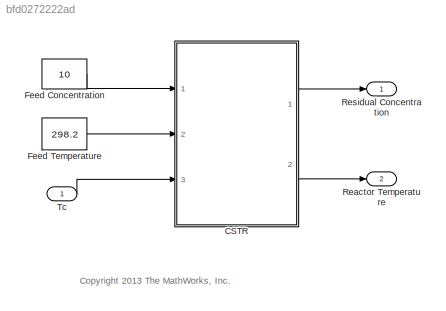
MODEL slx_bfd0272222ad
KIND model
CONFIG AbsTol = auto
CONFIG EnableMultiTasking = on
CONFIG FixedStep = auto
CONFIG MaxStep = auto
CONFIG MinStep = auto
CONFIG RelTol = 1e-3
CONFIG SampleTimeConstraint = Unconstrained
CONFIG SolverName = ode45
CONFIG StartTime = 0
CONFIG StopTime = 10
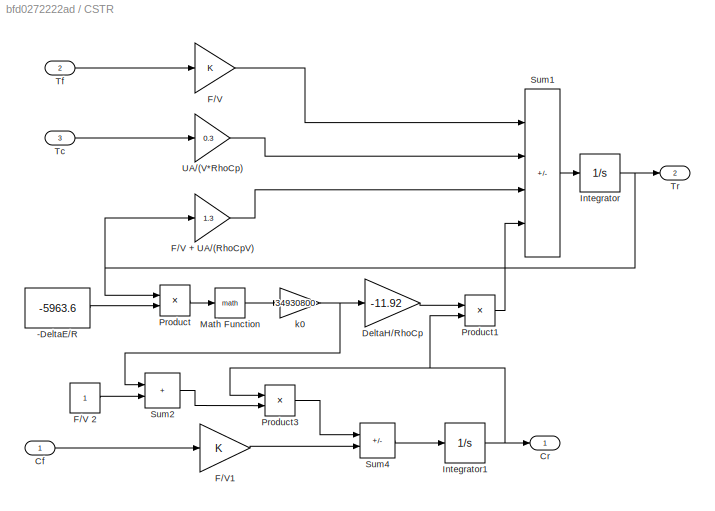
BLOCK [SubSystem] CSTR
  Ports = [3, 2]
  RequestExecContextInheritance = off
BLOCK [Constant] CSTR/-DeltaE//R
  SampleTime = 0
  Value = -5963.6
BLOCK [Inport] CSTR/Cf
BLOCK [Outport] CSTR/Cr
BLOCK [Gain] CSTR/DeltaH//RhoCp
  Gain = -11.92
  OutDataTypeStr = Inherit: Same as input
  ParamDataTypeStr = Inherit: Same as input
  SaturateOnIntegerOverflow = on
BLOCK [Gain] CSTR/F//V
  OutDataTypeStr = Inherit: Same as input
  ParamDataTypeStr = Inherit: Same as input
  SaturateOnIntegerOverflow = on
BLOCK [Gain] CSTR/F//V + UA//(RhoCpV)
  Gain = 1.3
  OutDataTypeStr = Inherit: Same as input
  ParamDataTypeStr = Inherit: Same as input
  SaturateOnIntegerOverflow = on
BLOCK [Constant] CSTR/F//V 2
  SampleTime = 0
BLOCK [Gain] CSTR/F//V1
  OutDataTypeStr = Inherit: Same as input
  ParamDataTypeStr = Inherit: Same as input
  SaturateOnIntegerOverflow = on
BLOCK [Integrator] CSTR/Integrator
  InitialCondition = 311.26
  LimitOutput = on
  LowerSaturationLimit = 0
  Ports = [1, 1]
BLOCK [Integrator] CSTR/Integrator1
  InitialCondition = 8.57
  LimitOutput = on
  LowerSaturationLimit = 0
  Ports = [1, 1]
BLOCK [Math] CSTR/Math Function
  Ports = [1, 1]
  SignedPower = on
BLOCK [Product] CSTR/Product
  InputSameDT = on
  Inputs = /*
  OutDataTypeStr = Inherit: Same as first input
  Ports = [2, 1]
  RndMeth = Zero
  SaturateOnIntegerOverflow = on
BLOCK [Product] CSTR/Product1
  InputSameDT = on
  OutDataTypeStr = Inherit: Same as first input
  Ports = [2, 1]
  RndMeth = Zero
  SaturateOnIntegerOverflow = on
BLOCK [Product] CSTR/Product3
  InputSameDT = on
  OutDataTypeStr = Inherit: Same as first input
  Ports = [2, 1]
  RndMeth = Zero
  SaturateOnIntegerOverflow = on
BLOCK [Sum] CSTR/Sum1
  IconShape = rectangular
  InputSameDT = on
  Inputs = ++--
  OutDataTypeStr = Inherit: Same as first input
  Ports = [4, 1]
  SaturateOnIntegerOverflow = on
BLOCK [Sum] CSTR/Sum2
  IconShape = rectangular
  InputSameDT = on
  OutDataTypeStr = Inherit: Same as first input
  Ports = [2, 1]
  SaturateOnIntegerOverflow = on
BLOCK [Sum] CSTR/Sum4
  IconShape = rectangular
  InputSameDT = on
  Inputs = -+
  OutDataTypeStr = Inherit: Same as first input
  Ports = [2, 1]
  SaturateOnIntegerOverflow = on
BLOCK [Inport] CSTR/Tc
  Port = 3
BLOCK [Inport] CSTR/Tf
  Port = 2
BLOCK [Outport] CSTR/Tr
  Port = 2
BLOCK [Gain] CSTR/UA//(V*RhoCp)
  Gain = 0.3
  OutDataTypeStr = Inherit: Same as input
  ParamDataTypeStr = Inherit: Same as input
  SaturateOnIntegerOverflow = on
BLOCK [Gain] CSTR/k0
  Gain = 34930800
  OutDataTypeStr = Inherit: Same as input
  ParamDataTypeStr = Inherit: Same as input
  SaturateOnIntegerOverflow = on
BLOCK [Constant] Feed Concentration
  SampleTime = 0
  Value = 10
BLOCK [Constant] Feed Temperature
  SampleTime = 0
  Value = 298.2
BLOCK [Outport] Reactor Temperature
  Port = 2
BLOCK [Outport] Residual Concentration 
BLOCK [Inport] Tc
ANNOTATION (root): <copyright redacted>
LINE CSTR/-DeltaE//R:1 -> CSTR/Product:2
LINE CSTR/Cf:1 -> CSTR/F//V1:1
LINE CSTR/DeltaH//RhoCp:1 -> CSTR/Product1:1
LINE CSTR/F//V + UA//(RhoCpV):1 -> CSTR/Sum1:3
LINE CSTR/F//V 2:1 -> CSTR/Sum2:2
LINE CSTR/F//V1:1 -> CSTR/Sum4:2
LINE CSTR/F//V:1 -> CSTR/Sum1:1
NET CSTR/Integrator1:1 -> CSTR/Cr:1, CSTR/Product1:2, CSTR/Product3:1
NET CSTR/Integrator:1 -> CSTR/F//V + UA//(RhoCpV):1, CSTR/Product:1, CSTR/Tr:1
LINE CSTR/Math Function:1 -> CSTR/k0:1
LINE CSTR/Product1:1 -> CSTR/Sum1:4
LINE CSTR/Product3:1 -> CSTR/Sum4:1
LINE CSTR/Product:1 -> CSTR/Math Function:1
LINE CSTR/Sum1:1 -> CSTR/Integrator:1
LINE CSTR/Sum2:1 -> CSTR/Product3:2
LINE CSTR/Sum4:1 -> CSTR/Integrator1:1
LINE CSTR/Tc:1 -> CSTR/UA//(V*RhoCp):1
LINE CSTR/Tf:1 -> CSTR/F//V:1
LINE CSTR/UA//(V*RhoCp):1 -> CSTR/Sum1:2
NET CSTR/k0:1 -> CSTR/DeltaH//RhoCp:1, CSTR/Sum2:1
LINE CSTR:1 -> Residual Concentration :1
LINE CSTR:2 -> Reactor Temperature:1
LINE Feed Concentration:1 -> CSTR:1
LINE Feed Temperature:1 -> CSTR:2
LINE Tc:1 -> CSTR:3
note: NET lines group one-source signal fan-out (src -> all destinations, sorted); 1:1 wires keep LINE
